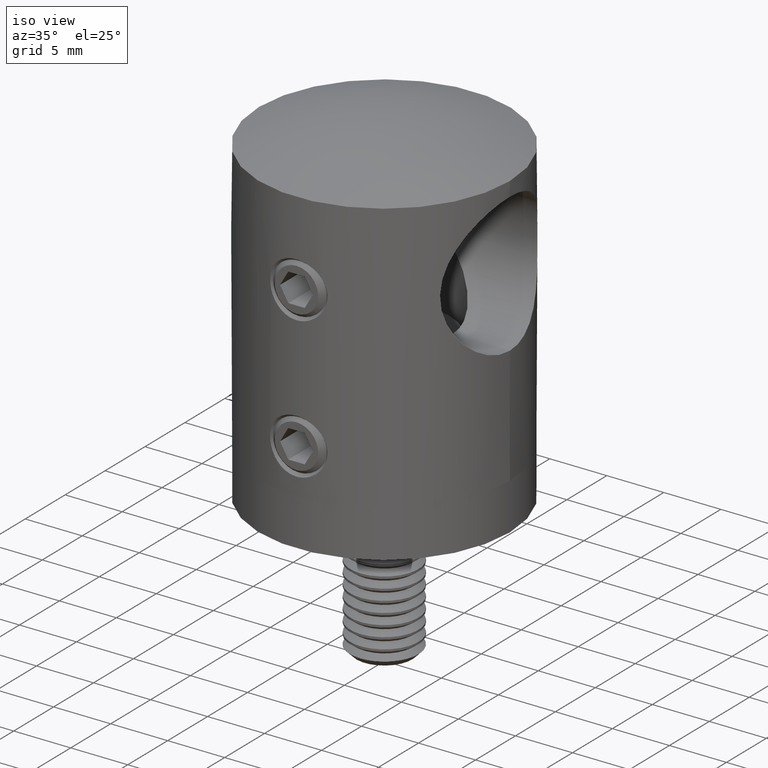
[diagram: clean part render]
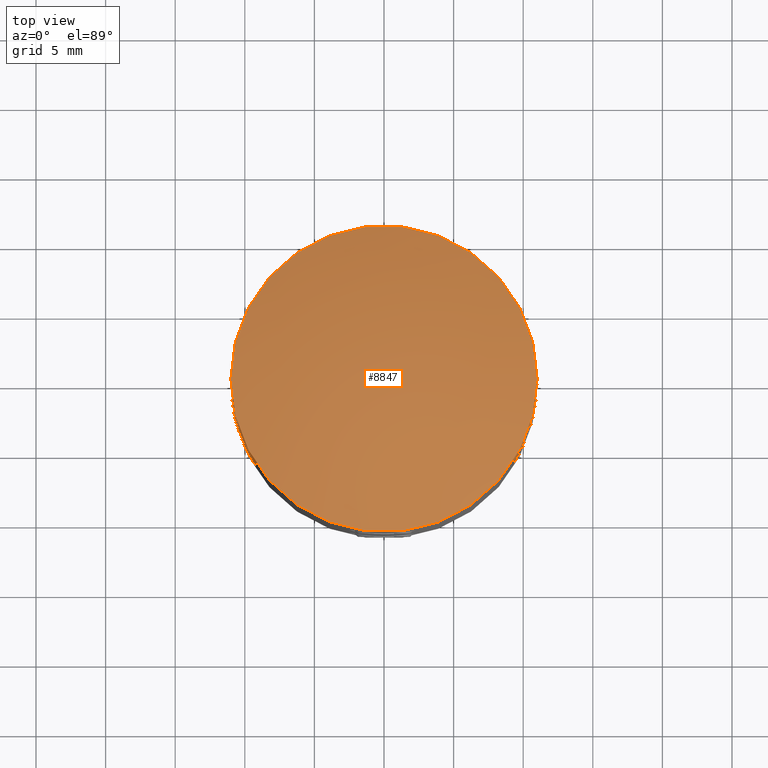
[diagram: tour spotlight — one face highlighted and labeled with its STEP entity id]
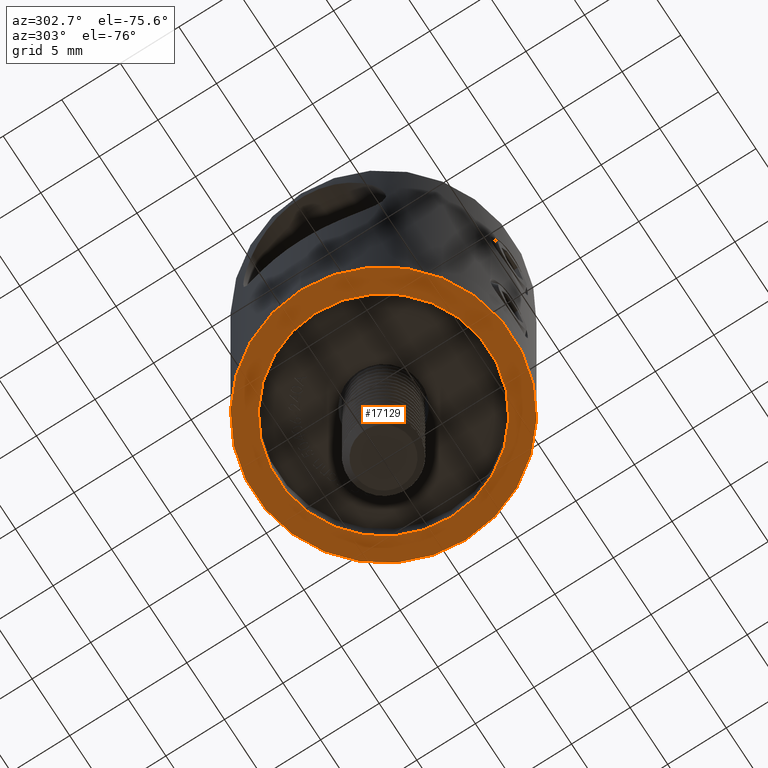
[diagram: tour spotlight — one face highlighted and labeled with its STEP entity id]
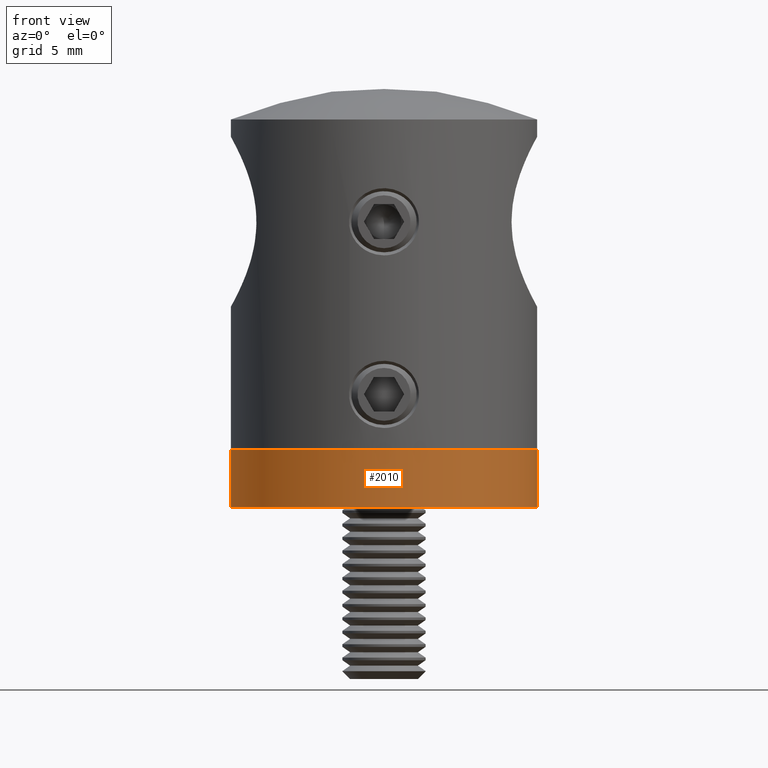
[diagram: tour spotlight — one face highlighted and labeled with its STEP entity id]
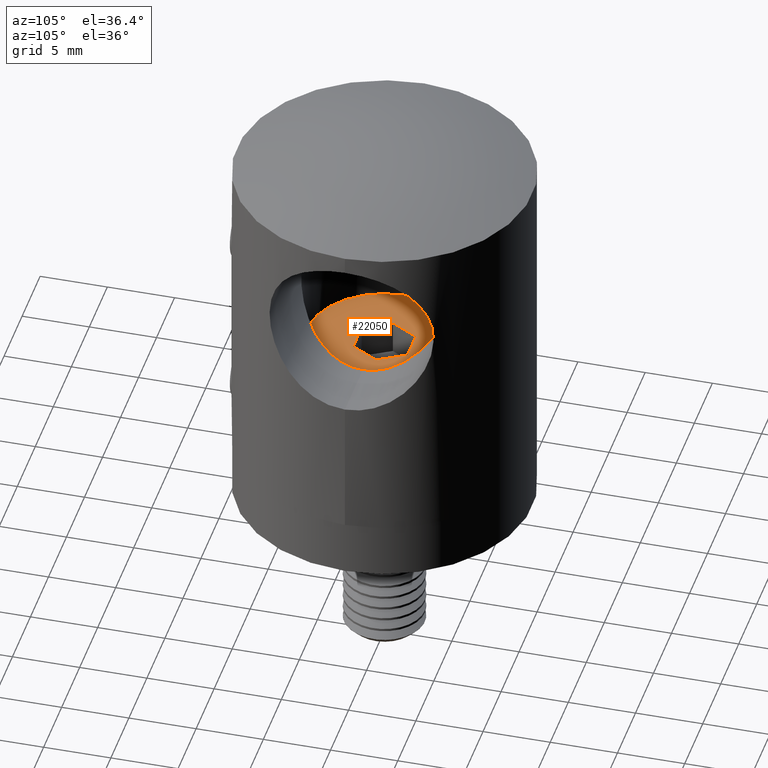
[diagram: tour spotlight — one face highlighted and labeled with its STEP entity id]
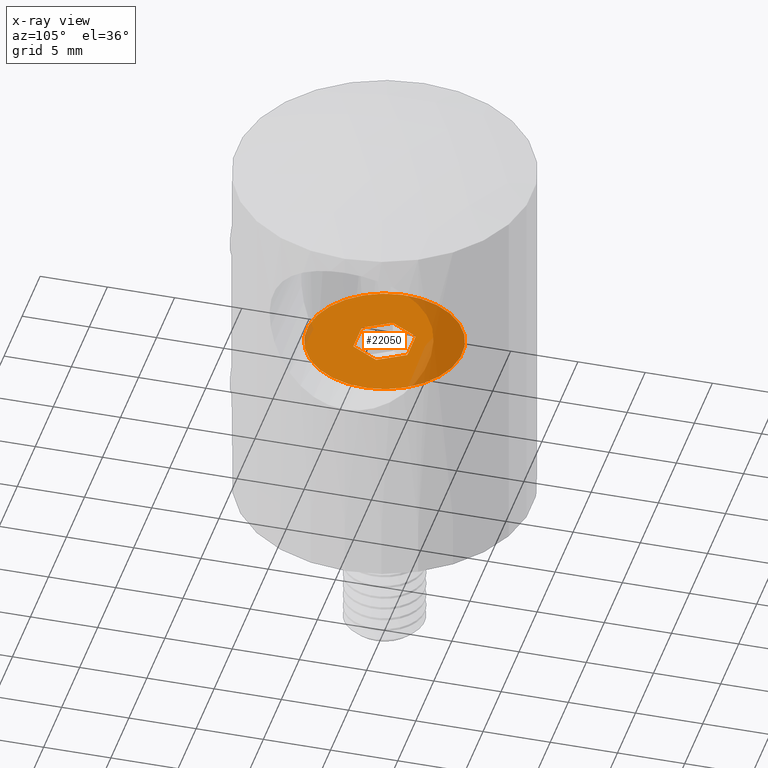
[diagram: x-ray of the same camera — body ghosted, this tour face saturated]
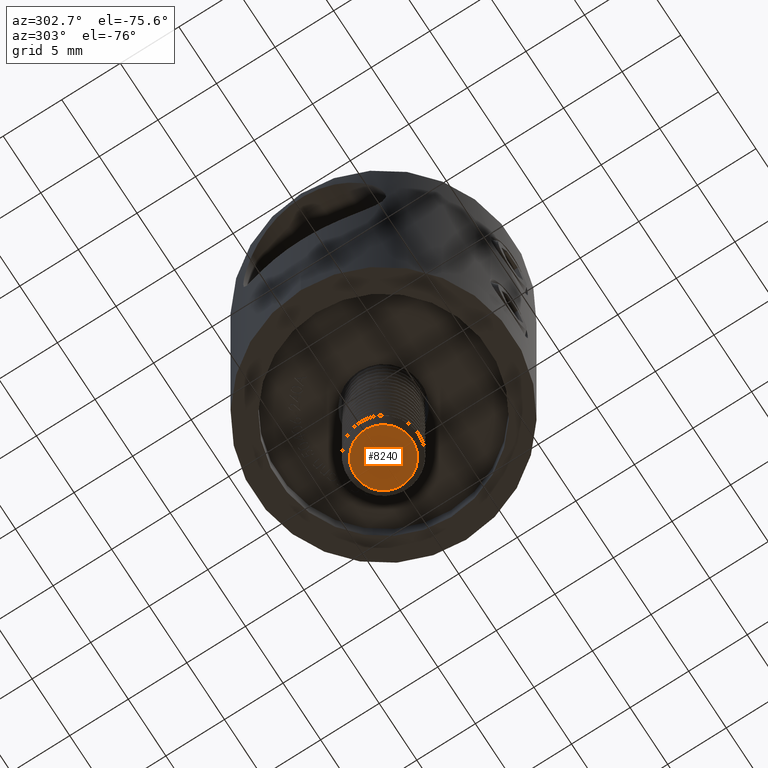
[diagram: tour spotlight — one face highlighted and labeled with its STEP entity id]
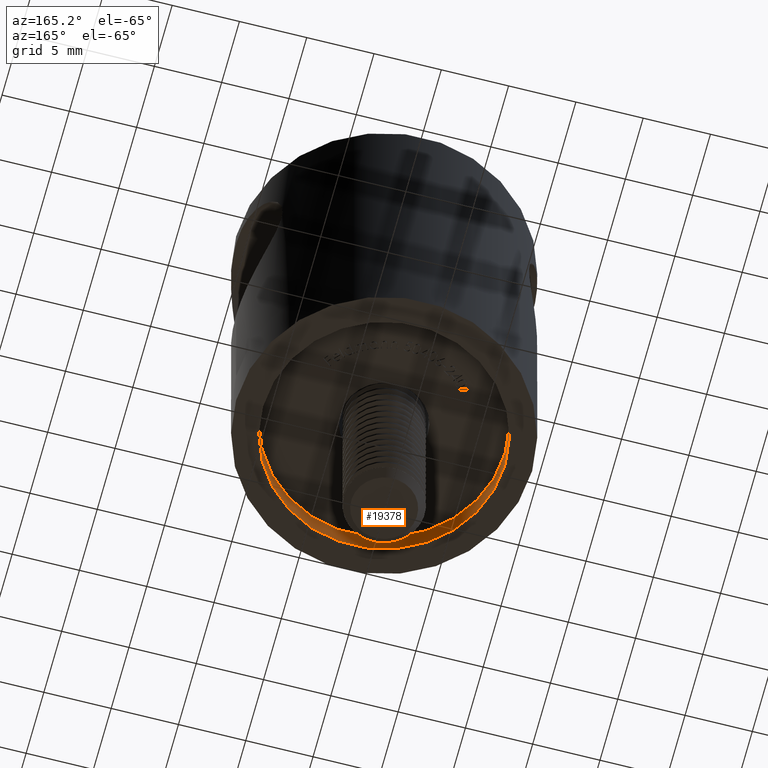
[diagram: tour spotlight — one face highlighted and labeled with its STEP entity id]
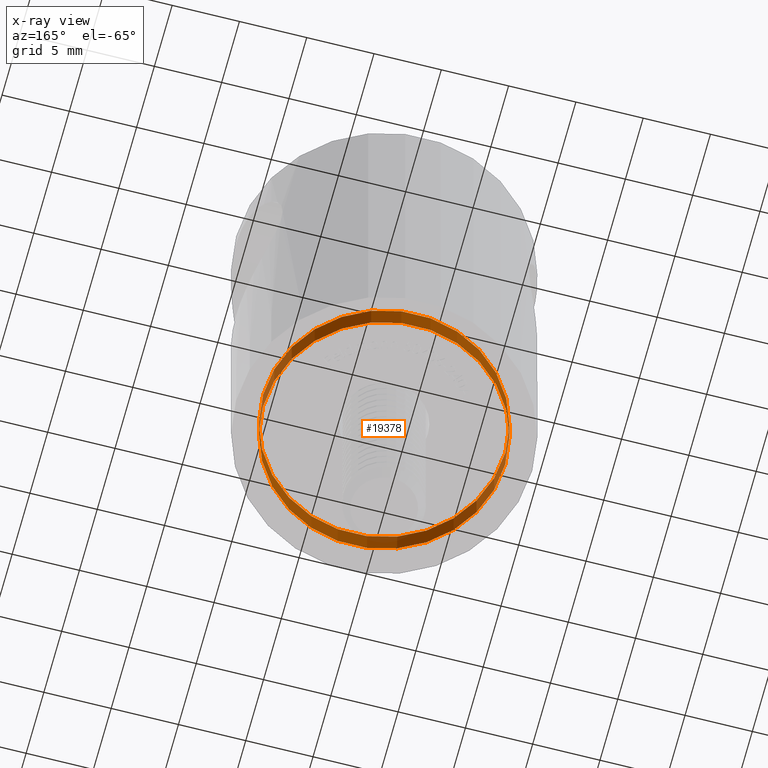
[diagram: x-ray of the same camera — body ghosted, this tour face saturated]
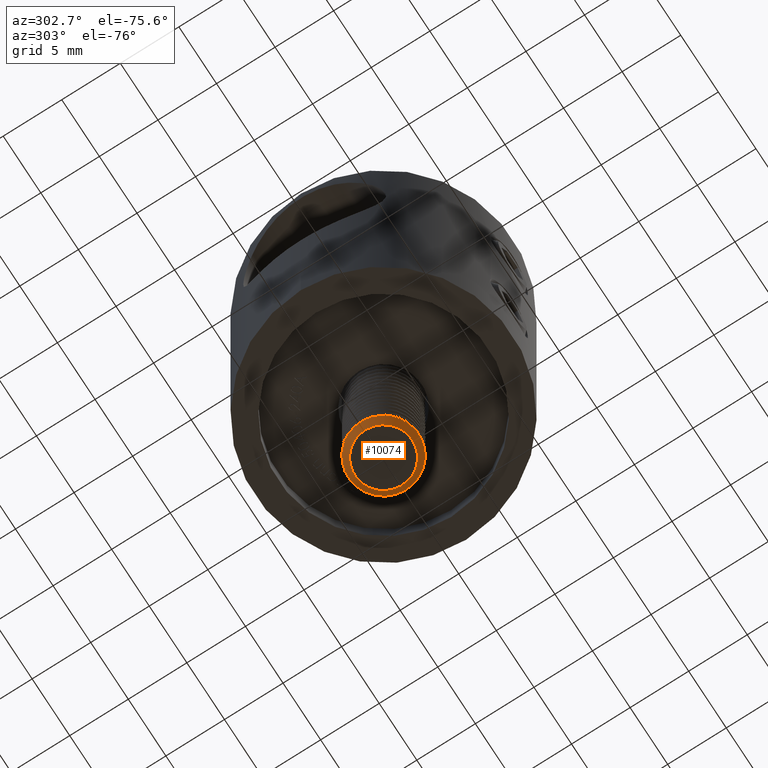
[diagram: tour spotlight — one face highlighted and labeled with its STEP entity id]
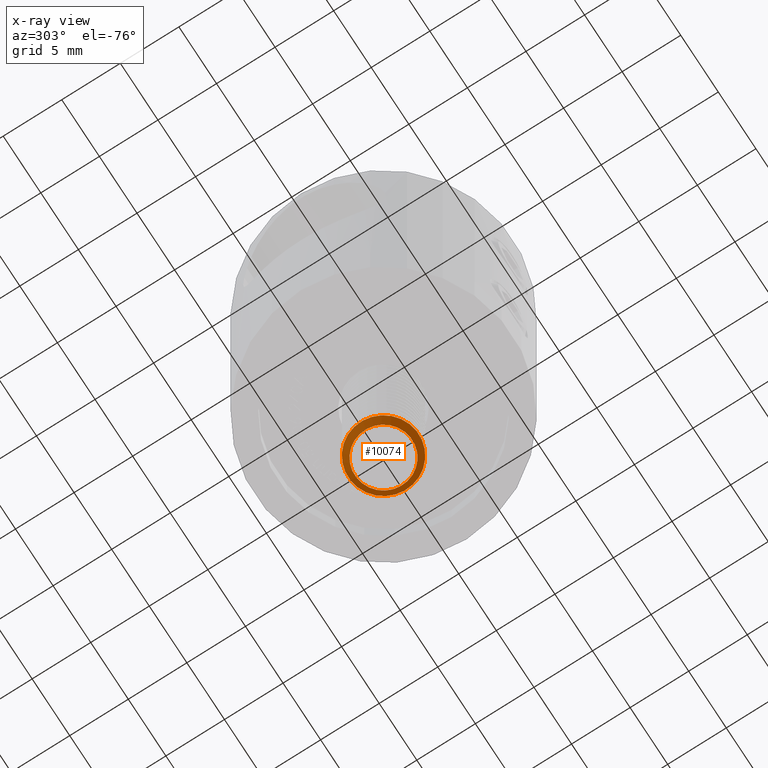
[diagram: x-ray of the same camera — body ghosted, this tour face saturated]
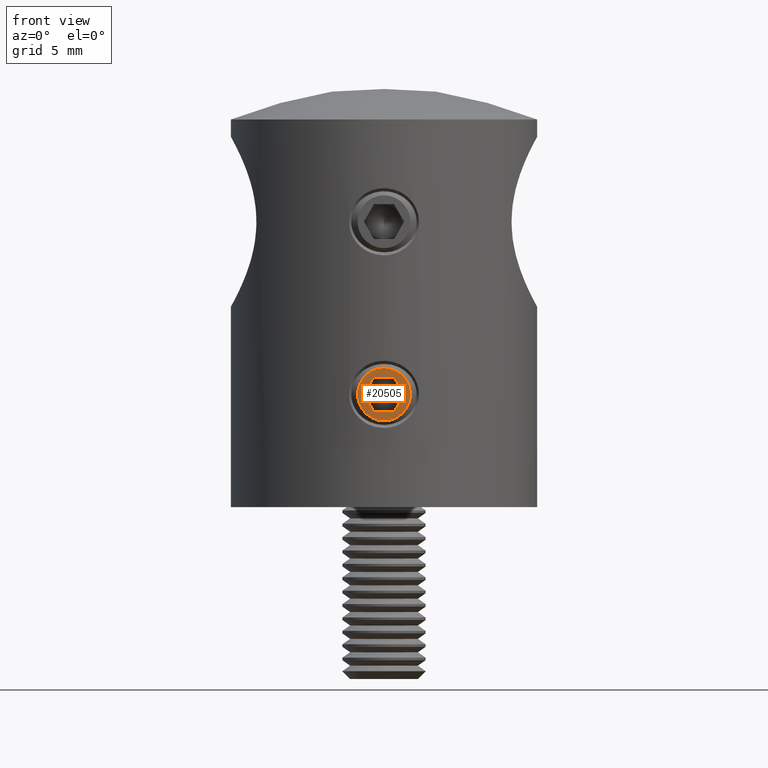
[diagram: tour spotlight — one face highlighted and labeled with its STEP entity id]
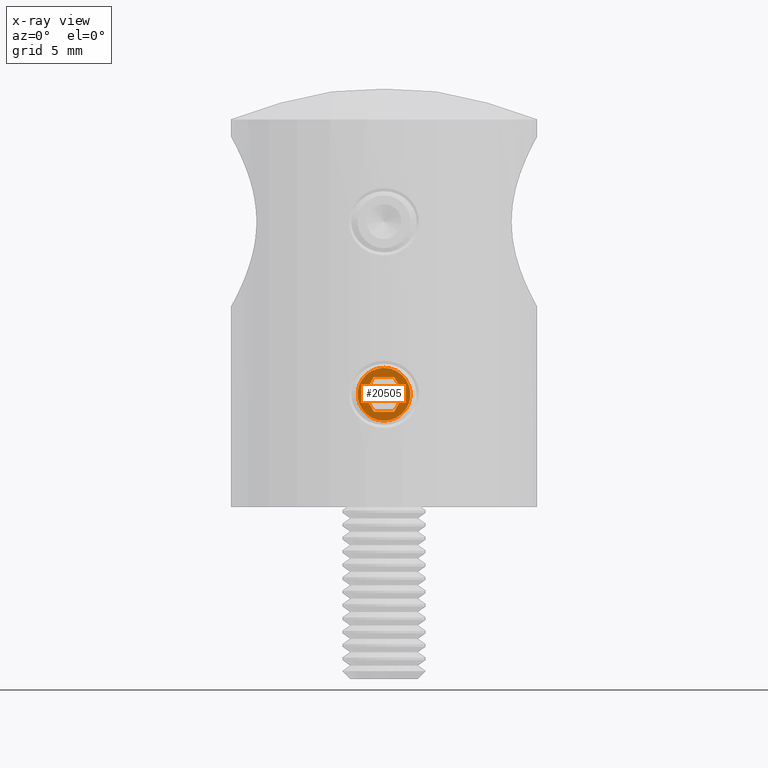
[diagram: x-ray of the same camera — body ghosted, this tour face saturated]
A machine part: a face-by-face anatomy tour. The part has 371 B-rep faces; the first image is the clean iso view, then the 8 largest visible faces are spotlighted one at a time (largest first), each with its STEP entity span.

Face 1 — top view, entity #8847. In plain terms, the highlighted spherical surface has radius 28 mm.
Definition (entity closure, byte-faithful):
#2544 = VERTEX_POINT ( 'NONE', #8158 ) ;
#5577 = SPHERICAL_SURFACE ( 'NONE', #20082, 28.00000000000000400 ) ;
#7720 = DIRECTION ( 'NONE',  ( -0.0000000000000000000, -0.0000000000000000000, 1.000000000000000000 ) ) ;
#8158 = CARTESIAN_POINT ( 'NONE',  ( 10.99999999999999600, 0.0000000000000000000, 23.74878637916747000 ) ) ;
#8847 = ADVANCED_FACE ( 'NONE', ( #13156 ), #5577, .T. ) ;
#9430 = ORIENTED_EDGE ( 'NONE', *, *, #11305, .T. ) ;
#11257 = CARTESIAN_POINT ( 'NONE',  ( 0.0000000000000000000, 0.0000000000000000000, 23.74878637916747000 ) ) ;
#11305 = EDGE_CURVE ( 'NONE', #2544, #2544, #18775, .T. ) ;
#13156 = FACE_OUTER_BOUND ( 'NONE', #19084, .T. ) ;
#15259 = CARTESIAN_POINT ( 'NONE',  ( 0.0000000000000000000, 0.0000000000000000000, -2.000000000000008900 ) ) ;
#16406 = DIRECTION ( 'NONE',  ( 1.000000000000000000, 0.0000000000000000000, 0.0000000000000000000 ) ) ;
#18506 = DIRECTION ( 'NONE',  ( 0.0000000000000000000, 1.000000000000000000, 0.0000000000000000000 ) ) ;
#18775 = CIRCLE ( 'NONE', #19663, 10.99999999999999600 ) ;
#19084 = EDGE_LOOP ( 'NONE', ( #9430 ) ) ;
#19663 = AXIS2_PLACEMENT_3D ( 'NONE', #11257, #7720, #16406 ) ;
#20082 = AXIS2_PLACEMENT_3D ( 'NONE', #15259, #21868, #18506 ) ;
#21868 = DIRECTION ( 'NONE',  ( -1.000000000000000000, 0.0000000000000000000, 0.0000000000000000000 ) ) ;

Face 2 — auxiliary view, entity #17129. In plain terms, the highlighted planar face has unit normal (0, 0, -1).
Definition (entity closure, byte-faithful):
#851 = CARTESIAN_POINT ( 'NONE',  ( 0.0000000000000000000, 0.0000000000000000000, -4.099999999999999600 ) ) ;
#952 = DIRECTION ( 'NONE',  ( -0.0000000000000000000, 0.0000000000000000000, -1.000000000000000000 ) ) ;
#1030 = CARTESIAN_POINT ( 'NONE',  ( 0.0000000000000000000, 11.00000000000000000, -4.099999999999999600 ) ) ;
#1490 = CIRCLE ( 'NONE', #16563, 9.000000000000000000 ) ;
#3423 = DIRECTION ( 'NONE',  ( -0.0000000000000000000, -0.0000000000000000000, -1.000000000000000000 ) ) ;
#4165 = DIRECTION ( 'NONE',  ( -0.0000000000000000000, -0.0000000000000000000, -1.000000000000000000 ) ) ;
#4498 = AXIS2_PLACEMENT_3D ( 'NONE', #1030, #952, #16681 ) ;
#8426 = CARTESIAN_POINT ( 'NONE',  ( 0.0000000000000000000, 0.0000000000000000000, -4.099999999999999600 ) ) ;
#9871 = PLANE ( 'NONE',  #4498 ) ;
#9889 = CARTESIAN_POINT ( 'NONE',  ( -11.00000000000000000, 0.0000000000000000000, -4.099999999999999600 ) ) ;
#10020 = EDGE_LOOP ( 'NONE', ( #16376 ) ) ;
#11490 = VERTEX_POINT ( 'NONE', #9889 ) ;
#11756 = EDGE_CURVE ( 'NONE', #11490, #11490, #12009, .T. ) ;
#12009 = CIRCLE ( 'NONE', #17668, 11.00000000000000000 ) ;
#12518 = CARTESIAN_POINT ( 'NONE',  ( -9.000000000000000000, 0.0000000000000000000, -4.099999999999999600 ) ) ;
#12727 = FACE_OUTER_BOUND ( 'NONE', #15331, .T. ) ;
#15331 = EDGE_LOOP ( 'NONE', ( #22276 ) ) ;
#15538 = DIRECTION ( 'NONE',  ( -1.000000000000000000, 0.0000000000000000000, 0.0000000000000000000 ) ) ;
#16280 = DIRECTION ( 'NONE',  ( -1.000000000000000000, 0.0000000000000000000, 0.0000000000000000000 ) ) ;
#16376 = ORIENTED_EDGE ( 'NONE', *, *, #22113, .F. ) ;
#16563 = AXIS2_PLACEMENT_3D ( 'NONE', #8426, #3423, #15538 ) ;
#16681 = DIRECTION ( 'NONE',  ( -1.000000000000000000, 0.0000000000000000000, 0.0000000000000000000 ) ) ;
#17129 = ADVANCED_FACE ( 'NONE', ( #12727, #20545 ), #9871, .T. ) ;
#17153 = VERTEX_POINT ( 'NONE', #12518 ) ;
#17668 = AXIS2_PLACEMENT_3D ( 'NONE', #851, #4165, #16280 ) ;
#20545 = FACE_BOUND ( 'NONE', #10020, .T. ) ;
#22113 = EDGE_CURVE ( 'NONE', #17153, #17153, #1490, .T. ) ;
#22276 = ORIENTED_EDGE ( 'NONE', *, *, #11756, .T. ) ;

Face 3 — front view, entity #2010. In plain terms, the highlighted cylindrical surface (bore or boss wall) has radius 11 mm, axis along (-0, -0, -1).
Definition (entity closure, byte-faithful):
#851 = CARTESIAN_POINT ( 'NONE',  ( 0.0000000000000000000, 0.0000000000000000000, -4.099999999999999600 ) ) ;
#2010 = ADVANCED_FACE ( 'NONE', ( #14355, #17044 ), #18386, .T. ) ;
#2817 = ORIENTED_EDGE ( 'NONE', *, *, #11756, .F. ) ;
#4165 = DIRECTION ( 'NONE',  ( -0.0000000000000000000, -0.0000000000000000000, -1.000000000000000000 ) ) ;
#4428 = DIRECTION ( 'NONE',  ( -1.000000000000000000, 0.0000000000000000000, 0.0000000000000000000 ) ) ;
#5754 = ORIENTED_EDGE ( 'NONE', *, *, #16175, .T. ) ;
#6514 = AXIS2_PLACEMENT_3D ( 'NONE', #16775, #18510, #13379 ) ;
#7744 = CARTESIAN_POINT ( 'NONE',  ( -11.00000000000000000, 0.0000000000000000000, 0.0000000000000000000 ) ) ;
#9889 = CARTESIAN_POINT ( 'NONE',  ( -11.00000000000000000, 0.0000000000000000000, -4.099999999999999600 ) ) ;
#10023 = CIRCLE ( 'NONE', #6514, 11.00000000000000000 ) ;
#10252 = EDGE_LOOP ( 'NONE', ( #2817 ) ) ;
#11490 = VERTEX_POINT ( 'NONE', #9889 ) ;
#11756 = EDGE_CURVE ( 'NONE', #11490, #11490, #12009, .T. ) ;
#12009 = CIRCLE ( 'NONE', #17668, 11.00000000000000000 ) ;
#12851 = VERTEX_POINT ( 'NONE', #7744 ) ;
#12926 = DIRECTION ( 'NONE',  ( -0.0000000000000000000, -0.0000000000000000000, -1.000000000000000000 ) ) ;
#13379 = DIRECTION ( 'NONE',  ( -1.000000000000000000, 0.0000000000000000000, 0.0000000000000000000 ) ) ;
#14355 = FACE_OUTER_BOUND ( 'NONE', #21196, .T. ) ;
#16175 = EDGE_CURVE ( 'NONE', #12851, #12851, #10023, .T. ) ;
#16248 = CARTESIAN_POINT ( 'NONE',  ( 0.0000000000000000000, 0.0000000000000000000, -2.100000000000000100 ) ) ;
#16280 = DIRECTION ( 'NONE',  ( -1.000000000000000000, 0.0000000000000000000, 0.0000000000000000000 ) ) ;
#16312 = AXIS2_PLACEMENT_3D ( 'NONE', #16248, #12926, #4428 ) ;
#16775 = CARTESIAN_POINT ( 'NONE',  ( 0.0000000000000000000, 0.0000000000000000000, 0.0000000000000000000 ) ) ;
#17044 = FACE_OUTER_BOUND ( 'NONE', #10252, .T. ) ;
#17668 = AXIS2_PLACEMENT_3D ( 'NONE', #851, #4165, #16280 ) ;
#18386 = CYLINDRICAL_SURFACE ( 'NONE', #16312, 11.00000000000000000 ) ;
#18510 = DIRECTION ( 'NONE',  ( -0.0000000000000000000, -0.0000000000000000000, -1.000000000000000000 ) ) ;
#21196 = EDGE_LOOP ( 'NONE', ( #5754 ) ) ;

Face 4 — auxiliary view, entity #22050. An x-ray twin of the same camera follows (body ghosted, this face saturated) — the face is partly hidden behind the body. In plain terms, the highlighted planar face has unit normal (-0, 0, 1).
Definition (entity closure, byte-faithful):
#285 = CARTESIAN_POINT ( 'NONE',  ( 0.0000000000000000000, -1.160474041071147200, 2.009999999999999800 ) ) ;
#298 = LINE ( 'NONE', #13581, #20276 ) ;
#646 = AXIS2_PLACEMENT_3D ( 'NONE', #9722, #13064, #11238 ) ;
#659 = VERTEX_POINT ( 'NONE', #14262 ) ;
#971 = CARTESIAN_POINT ( 'NONE',  ( 0.0000000000000000000, 2.320948082142296100, -3.233603273357869300E-017 ) ) ;
#1262 = VERTEX_POINT ( 'NONE', #285 ) ;
#1622 = VECTOR ( 'NONE', #17382, 1000.000000000000000 ) ;
#1918 = CARTESIAN_POINT ( 'NONE',  ( 0.0000000000000000000, 1.160474041071147600, -2.009999999999999300 ) ) ;
#2612 = VECTOR ( 'NONE', #16349, 1000.000000000000000 ) ;
#2680 = VERTEX_POINT ( 'NONE', #10445 ) ;
#3408 = LINE ( 'NONE', #12983, #21265 ) ;
#3440 = CARTESIAN_POINT ( 'NONE',  ( 0.0000000000000000000, 1.160474041071147600, 2.009999999999999800 ) ) ;
#4104 = EDGE_CURVE ( 'NONE', #12582, #1262, #8119, .T. ) ;
#4856 = CARTESIAN_POINT ( 'NONE',  ( 0.0000000000000000000, 1.160474041071147600, 2.009999999999999800 ) ) ;
#5921 = VERTEX_POINT ( 'NONE', #971 ) ;
#6114 = ORIENTED_EDGE ( 'NONE', *, *, #18344, .T. ) ;
#6123 = AXIS2_PLACEMENT_3D ( 'NONE', #17043, #6982, #19071 ) ;
#6140 = LINE ( 'NONE', #21465, #2612 ) ;
#6982 = DIRECTION ( 'NONE',  ( -1.000000000000000000, 0.0000000000000000000, -0.0000000000000000000 ) ) ;
#7124 = DIRECTION ( 'NONE',  ( -0.0000000000000000000, -0.5000000000000004400, -0.8660254037844383700 ) ) ;
#7414 = VERTEX_POINT ( 'NONE', #17809 ) ;
#7930 = EDGE_CURVE ( 'NONE', #2680, #7414, #6140, .T. ) ;
#8119 = LINE ( 'NONE', #4856, #1622 ) ;
#9383 = ORIENTED_EDGE ( 'NONE', *, *, #4104, .T. ) ;
#9722 = CARTESIAN_POINT ( 'NONE',  ( 0.0000000000000000000, 0.0000000000000000000, 0.0000000000000000000 ) ) ;
#10328 = PLANE ( 'NONE',  #6123 ) ;
#10445 = CARTESIAN_POINT ( 'NONE',  ( 0.0000000000000000000, -2.320948082142296500, 0.0000000000000000000 ) ) ;
#10459 = CARTESIAN_POINT ( 'NONE',  ( 0.0000000000000000000, -1.160474041071147200, 2.009999999999999800 ) ) ;
#11238 = DIRECTION ( 'NONE',  ( 0.0000000000000000000, 0.0000000000000000000, 1.000000000000000000 ) ) ;
#12125 = CARTESIAN_POINT ( 'NONE',  ( 0.0000000000000000000, 1.160474041071147600, -2.009999999999999300 ) ) ;
#12261 = VECTOR ( 'NONE', #7124, 1000.000000000000000 ) ;
#12318 = LINE ( 'NONE', #12125, #14763 ) ;
#12441 = EDGE_LOOP ( 'NONE', ( #15107 ) ) ;
#12532 = ORIENTED_EDGE ( 'NONE', *, *, #20615, .T. ) ;
#12582 = VERTEX_POINT ( 'NONE', #3440 ) ;
#12814 = LINE ( 'NONE', #10459, #12261 ) ;
#12983 = CARTESIAN_POINT ( 'NONE',  ( -0.0000000000000000000, -1.160474041071147200, -2.009999999999999800 ) ) ;
#13064 = DIRECTION ( 'NONE',  ( -1.000000000000000000, -0.0000000000000000000, -0.0000000000000000000 ) ) ;
#13230 = EDGE_CURVE ( 'NONE', #1262, #2680, #12814, .T. ) ;
#13276 = DIRECTION ( 'NONE',  ( 0.0000000000000000000, 1.000000000000000000, 1.868550495941741000E-016 ) ) ;
#13406 = FACE_BOUND ( 'NONE', #22339, .T. ) ;
#13501 = ORIENTED_EDGE ( 'NONE', *, *, #13230, .T. ) ;
#13581 = CARTESIAN_POINT ( 'NONE',  ( 0.0000000000000000000, 2.320948082142296100, -3.233603273357869300E-017 ) ) ;
#14262 = CARTESIAN_POINT ( 'NONE',  ( 0.0000000000000000000, 0.0000000000000000000, 5.785000000000000100 ) ) ;
#14763 = VECTOR ( 'NONE', #15463, 1000.000000000000200 ) ;
#15107 = ORIENTED_EDGE ( 'NONE', *, *, #21856, .T. ) ;
#15463 = DIRECTION ( 'NONE',  ( 0.0000000000000000000, 0.5000000000000003300, 0.8660254037844383700 ) ) ;
#16349 = DIRECTION ( 'NONE',  ( 0.0000000000000000000, 0.5000000000000004400, -0.8660254037844383700 ) ) ;
#16623 = ORIENTED_EDGE ( 'NONE', *, *, #22173, .T. ) ;
#16905 = ORIENTED_EDGE ( 'NONE', *, *, #7930, .T. ) ;
#17043 = CARTESIAN_POINT ( 'NONE',  ( 0.0000000000000000000, 0.0000000000000000000, 0.0000000000000000000 ) ) ;
#17054 = DIRECTION ( 'NONE',  ( 0.0000000000000000000, -0.5000000000000003300, 0.8660254037844383700 ) ) ;
#17382 = DIRECTION ( 'NONE',  ( 0.0000000000000000000, -1.000000000000000000, 0.0000000000000000000 ) ) ;
#17809 = CARTESIAN_POINT ( 'NONE',  ( -0.0000000000000000000, -1.160474041071147200, -2.009999999999999800 ) ) ;
#18344 = EDGE_CURVE ( 'NONE', #5921, #12582, #298, .T. ) ;
#19071 = DIRECTION ( 'NONE',  ( -0.0000000000000000000, 0.0000000000000000000, 1.000000000000000000 ) ) ;
#19353 = CIRCLE ( 'NONE', #646, 5.785000000000000100 ) ;
#20276 = VECTOR ( 'NONE', #17054, 1000.000000000000200 ) ;
#20615 = EDGE_CURVE ( 'NONE', #7414, #22299, #3408, .T. ) ;
#21265 = VECTOR ( 'NONE', #13276, 1000.000000000000000 ) ;
#21465 = CARTESIAN_POINT ( 'NONE',  ( -0.0000000000000000000, -2.320948082142296100, -2.915072610455690300E-018 ) ) ;
#21506 = FACE_OUTER_BOUND ( 'NONE', #12441, .T. ) ;
#21856 = EDGE_CURVE ( 'NONE', #659, #659, #19353, .T. ) ;
#22050 = ADVANCED_FACE ( 'NONE', ( #21506, #13406 ), #10328, .T. ) ;
#22173 = EDGE_CURVE ( 'NONE', #22299, #5921, #12318, .T. ) ;
#22299 = VERTEX_POINT ( 'NONE', #1918 ) ;
#22339 = EDGE_LOOP ( 'NONE', ( #13501, #16905, #12532, #16623, #6114, #9383 ) ) ;

Face 5 — auxiliary view, entity #8240. In plain terms, the highlighted planar face has unit normal (0, 0, -1).
Definition (entity closure, byte-faithful):
#394 = EDGE_LOOP ( 'NONE', ( #4667 ) ) ;
#3424 = DIRECTION ( 'NONE',  ( 0.0000000000000000000, 0.0000000000000000000, 1.000000000000000000 ) ) ;
#4667 = ORIENTED_EDGE ( 'NONE', *, *, #17628, .F. ) ;
#6926 = AXIS2_PLACEMENT_3D ( 'NONE', #12973, #19597, #21629 ) ;
#7139 = DIRECTION ( 'NONE',  ( -1.000000000000000000, -0.0000000000000000000, -0.0000000000000000000 ) ) ;
#8240 = ADVANCED_FACE ( 'NONE', ( #12638 ), #19749, .T. ) ;
#8711 = AXIS2_PLACEMENT_3D ( 'NONE', #15764, #7139, #3424 ) ;
#12638 = FACE_OUTER_BOUND ( 'NONE', #394, .T. ) ;
#12973 = CARTESIAN_POINT ( 'NONE',  ( 25.00000000000000000, 2.445500000000000000, 0.0000000000000000000 ) ) ;
#14489 = VERTEX_POINT ( 'NONE', #16237 ) ;
#15764 = CARTESIAN_POINT ( 'NONE',  ( 25.00000000000000000, 0.0000000000000000000, 0.0000000000000000000 ) ) ;
#16237 = CARTESIAN_POINT ( 'NONE',  ( 25.00000000000000000, 0.0000000000000000000, 2.445500000000000000 ) ) ;
#17628 = EDGE_CURVE ( 'NONE', #14489, #14489, #18145, .T. ) ;
#18145 = CIRCLE ( 'NONE', #8711, 2.445500000000000000 ) ;
#19597 = DIRECTION ( 'NONE',  ( 1.000000000000000000, 0.0000000000000000000, 0.0000000000000000000 ) ) ;
#19749 = PLANE ( 'NONE',  #6926 ) ;
#21629 = DIRECTION ( 'NONE',  ( 0.0000000000000000000, 0.0000000000000000000, -1.000000000000000000 ) ) ;

Face 6 — auxiliary view, entity #19378. An x-ray twin of the same camera follows (body ghosted, this face saturated) — the face is partly hidden behind the body. In plain terms, the highlighted cylindrical surface (bore or boss wall) has radius 9 mm, axis along (-0, -0, -1).
Definition (entity closure, byte-faithful):
#1490 = CIRCLE ( 'NONE', #16563, 9.000000000000000000 ) ;
#3145 = CARTESIAN_POINT ( 'NONE',  ( -8.999999999999998200, 0.0000000000000000000, -2.099999999999999600 ) ) ;
#3423 = DIRECTION ( 'NONE',  ( -0.0000000000000000000, -0.0000000000000000000, -1.000000000000000000 ) ) ;
#5127 = EDGE_LOOP ( 'NONE', ( #17958 ) ) ;
#5912 = CARTESIAN_POINT ( 'NONE',  ( 0.0000000000000000000, 0.0000000000000000000, -2.099999999999999600 ) ) ;
#7234 = AXIS2_PLACEMENT_3D ( 'NONE', #5912, #19730, #21547 ) ;
#7430 = CIRCLE ( 'NONE', #7234, 8.999999999999998200 ) ;
#8215 = ORIENTED_EDGE ( 'NONE', *, *, #22113, .T. ) ;
#8426 = CARTESIAN_POINT ( 'NONE',  ( 0.0000000000000000000, 0.0000000000000000000, -4.099999999999999600 ) ) ;
#9997 = DIRECTION ( 'NONE',  ( -0.0000000000000000000, -0.0000000000000000000, -1.000000000000000000 ) ) ;
#11760 = EDGE_CURVE ( 'NONE', #15557, #15557, #7430, .T. ) ;
#12518 = CARTESIAN_POINT ( 'NONE',  ( -9.000000000000000000, 0.0000000000000000000, -4.099999999999999600 ) ) ;
#12971 = CARTESIAN_POINT ( 'NONE',  ( 0.0000000000000000000, 0.0000000000000000000, -2.100000000000000100 ) ) ;
#13306 = FACE_OUTER_BOUND ( 'NONE', #20944, .T. ) ;
#14929 = CYLINDRICAL_SURFACE ( 'NONE', #15541, 8.999999999999998200 ) ;
#15538 = DIRECTION ( 'NONE',  ( -1.000000000000000000, 0.0000000000000000000, 0.0000000000000000000 ) ) ;
#15541 = AXIS2_PLACEMENT_3D ( 'NONE', #12971, #9997, #22051 ) ;
#15557 = VERTEX_POINT ( 'NONE', #3145 ) ;
#16551 = FACE_OUTER_BOUND ( 'NONE', #5127, .T. ) ;
#16563 = AXIS2_PLACEMENT_3D ( 'NONE', #8426, #3423, #15538 ) ;
#17153 = VERTEX_POINT ( 'NONE', #12518 ) ;
#17958 = ORIENTED_EDGE ( 'NONE', *, *, #11760, .F. ) ;
#19378 = ADVANCED_FACE ( 'NONE', ( #13306, #16551 ), #14929, .F. ) ;
#19730 = DIRECTION ( 'NONE',  ( -0.0000000000000000000, -0.0000000000000000000, -1.000000000000000000 ) ) ;
#20944 = EDGE_LOOP ( 'NONE', ( #8215 ) ) ;
#21547 = DIRECTION ( 'NONE',  ( -1.000000000000000000, 0.0000000000000000000, 0.0000000000000000000 ) ) ;
#22051 = DIRECTION ( 'NONE',  ( -1.000000000000000000, 0.0000000000000000000, 0.0000000000000000000 ) ) ;
#22113 = EDGE_CURVE ( 'NONE', #17153, #17153, #1490, .T. ) ;

Face 7 — auxiliary view, entity #10074. An x-ray twin of the same camera follows (body ghosted, this face saturated) — the face is partly hidden behind the body. In plain terms, the highlighted conical surface has half-angle 45 deg.
Definition (entity closure, byte-faithful):
#679 = DIRECTION ( 'NONE',  ( -1.000000000000000000, -0.0000000000000000000, -0.0000000000000000000 ) ) ;
#1914 = CIRCLE ( 'NONE', #10746, 3.000000000000000900 ) ;
#2245 = EDGE_LOOP ( 'NONE', ( #10992 ) ) ;
#3424 = DIRECTION ( 'NONE',  ( 0.0000000000000000000, 0.0000000000000000000, 1.000000000000000000 ) ) ;
#3496 = DIRECTION ( 'NONE',  ( -1.000000000000000000, -0.0000000000000000000, -0.0000000000000000000 ) ) ;
#5891 = EDGE_LOOP ( 'NONE', ( #19843 ) ) ;
#6910 = DIRECTION ( 'NONE',  ( 0.0000000000000000000, 0.0000000000000000000, 1.000000000000000000 ) ) ;
#6916 = FACE_OUTER_BOUND ( 'NONE', #2245, .T. ) ;
#7139 = DIRECTION ( 'NONE',  ( -1.000000000000000000, -0.0000000000000000000, -0.0000000000000000000 ) ) ;
#8711 = AXIS2_PLACEMENT_3D ( 'NONE', #15764, #7139, #3424 ) ;
#8781 = VERTEX_POINT ( 'NONE', #13976 ) ;
#10074 = ADVANCED_FACE ( 'NONE', ( #6916, #10986 ), #17452, .T. ) ;
#10746 = AXIS2_PLACEMENT_3D ( 'NONE', #20655, #3496, #6910 ) ;
#10986 = FACE_BOUND ( 'NONE', #5891, .T. ) ;
#10992 = ORIENTED_EDGE ( 'NONE', *, *, #17565, .F. ) ;
#12477 = CARTESIAN_POINT ( 'NONE',  ( 25.00000000000000000, 0.0000000000000000000, 0.0000000000000000000 ) ) ;
#12550 = DIRECTION ( 'NONE',  ( 0.0000000000000000000, 0.0000000000000000000, 1.000000000000000000 ) ) ;
#13166 = AXIS2_PLACEMENT_3D ( 'NONE', #12477, #679, #12550 ) ;
#13976 = CARTESIAN_POINT ( 'NONE',  ( 24.44550000000003100, 0.0000000000000000000, 3.000000000000000900 ) ) ;
#14489 = VERTEX_POINT ( 'NONE', #16237 ) ;
#15764 = CARTESIAN_POINT ( 'NONE',  ( 25.00000000000000000, 0.0000000000000000000, 0.0000000000000000000 ) ) ;
#16237 = CARTESIAN_POINT ( 'NONE',  ( 25.00000000000000000, 0.0000000000000000000, 2.445500000000000000 ) ) ;
#17452 = CONICAL_SURFACE ( 'NONE', #13166, 2.445500000000000000, 0.7853981633974744800 ) ;
#17565 = EDGE_CURVE ( 'NONE', #8781, #8781, #1914, .T. ) ;
#17628 = EDGE_CURVE ( 'NONE', #14489, #14489, #18145, .T. ) ;
#18145 = CIRCLE ( 'NONE', #8711, 2.445500000000000000 ) ;
#19843 = ORIENTED_EDGE ( 'NONE', *, *, #17628, .T. ) ;
#20655 = CARTESIAN_POINT ( 'NONE',  ( 24.44550000000003100, 0.0000000000000000000, 0.0000000000000000000 ) ) ;

Face 8 — front view, entity #20505. An x-ray twin of the same camera follows (body ghosted, this face saturated) — the face is partly hidden behind the body. In plain terms, the highlighted planar face has unit normal (0, -1, 0).
Definition (entity closure, byte-faithful):
#15 = LINE ( 'NONE', #13579, #16241 ) ;
#458 = CARTESIAN_POINT ( 'NONE',  ( 6.000000000000000000, 0.7216878364870326100, 1.250000000000000200 ) ) ;
#530 = ORIENTED_EDGE ( 'NONE', *, *, #1688, .F. ) ;
#940 = CARTESIAN_POINT ( 'NONE',  ( 6.000000000000000000, -0.7216878364870333900, -1.249999999999999600 ) ) ;
#1308 = CARTESIAN_POINT ( 'NONE',  ( 6.000000000000000000, -1.443375672974064500, -2.081695953396925700E-016 ) ) ;
#1629 = DIRECTION ( 'NONE',  ( 0.0000000000000000000, 0.5000000000000001100, 0.8660254037844386000 ) ) ;
#1688 = EDGE_CURVE ( 'NONE', #9222, #17923, #19488, .T. ) ;
#1756 = EDGE_LOOP ( 'NONE', ( #2555, #19468, #20783, #7850, #19581, #530 ) ) ;
#2512 = EDGE_CURVE ( 'NONE', #5645, #14385, #19993, .T. ) ;
#2555 = ORIENTED_EDGE ( 'NONE', *, *, #19157, .F. ) ;
#2720 = VECTOR ( 'NONE', #16810, 1000.000000000000100 ) ;
#3352 = VERTEX_POINT ( 'NONE', #12673 ) ;
#3781 = CARTESIAN_POINT ( 'NONE',  ( 6.000000000000000000, 1.443375672974064800, -2.774817153268599200E-017 ) ) ;
#4920 = VECTOR ( 'NONE', #20260, 1000.000000000000000 ) ;
#5558 = EDGE_LOOP ( 'NONE', ( #20687 ) ) ;
#5645 = VERTEX_POINT ( 'NONE', #3781 ) ;
#6220 = VECTOR ( 'NONE', #21254, 1000.000000000000100 ) ;
#7522 = CARTESIAN_POINT ( 'NONE',  ( 6.000000000000000000, 1.443375672974064800, -2.774817153268599200E-017 ) ) ;
#7568 = AXIS2_PLACEMENT_3D ( 'NONE', #10325, #19067, #17196 ) ;
#7850 = ORIENTED_EDGE ( 'NONE', *, *, #18972, .F. ) ;
#8144 = CIRCLE ( 'NONE', #7568, 1.900000000000000100 ) ;
#9222 = VERTEX_POINT ( 'NONE', #18614 ) ;
#9915 = CARTESIAN_POINT ( 'NONE',  ( 6.000000000000000000, 0.0000000000000000000, -1.900000000000000100 ) ) ;
#10013 = DIRECTION ( 'NONE',  ( 0.0000000000000000000, -1.000000000000000000, 0.0000000000000000000 ) ) ;
#10325 = CARTESIAN_POINT ( 'NONE',  ( 6.000000000000000000, 0.0000000000000000000, 0.0000000000000000000 ) ) ;
#12673 = CARTESIAN_POINT ( 'NONE',  ( 6.000000000000000000, -0.7216878364870318300, 1.250000000000000200 ) ) ;
#12996 = EDGE_CURVE ( 'NONE', #17923, #18413, #19550, .T. ) ;
#13579 = CARTESIAN_POINT ( 'NONE',  ( 6.000000000000000000, 0.7216878364870326100, -1.249999999999999600 ) ) ;
#14385 = VERTEX_POINT ( 'NONE', #458 ) ;
#14529 = VECTOR ( 'NONE', #10013, 1000.000000000000000 ) ;
#14582 = DIRECTION ( 'NONE',  ( 1.000000000000000000, 0.0000000000000000000, 0.0000000000000000000 ) ) ;
#16241 = VECTOR ( 'NONE', #1629, 1000.000000000000000 ) ;
#16383 = DIRECTION ( 'NONE',  ( 0.0000000000000000000, 0.0000000000000000000, -1.000000000000000000 ) ) ;
#16698 = EDGE_CURVE ( 'NONE', #20672, #20672, #8144, .T. ) ;
#16810 = DIRECTION ( 'NONE',  ( 0.0000000000000000000, 0.4999999999999996100, -0.8660254037844388200 ) ) ;
#16979 = CARTESIAN_POINT ( 'NONE',  ( 6.000000000000000000, 0.7216878364870326100, -1.249999999999999600 ) ) ;
#17196 = DIRECTION ( 'NONE',  ( 0.0000000000000000000, 0.0000000000000000000, -1.000000000000000000 ) ) ;
#17359 = LINE ( 'NONE', #17887, #18965 ) ;
#17489 = LINE ( 'NONE', #18333, #14529 ) ;
#17728 = AXIS2_PLACEMENT_3D ( 'NONE', #18052, #14582, #16383 ) ;
#17887 = CARTESIAN_POINT ( 'NONE',  ( 6.000000000000000000, -0.7216878364870318300, 1.250000000000000200 ) ) ;
#17923 = VERTEX_POINT ( 'NONE', #21750 ) ;
#18052 = CARTESIAN_POINT ( 'NONE',  ( 6.000000000000000000, 0.0000000000000000000, 0.0000000000000000000 ) ) ;
#18333 = CARTESIAN_POINT ( 'NONE',  ( 6.000000000000000000, 0.7216878364870326100, 1.250000000000000200 ) ) ;
#18413 = VERTEX_POINT ( 'NONE', #16979 ) ;
#18614 = CARTESIAN_POINT ( 'NONE',  ( 6.000000000000000000, -1.443375672974064500, -1.084202172485504400E-016 ) ) ;
#18965 = VECTOR ( 'NONE', #19595, 1000.000000000000100 ) ;
#18972 = EDGE_CURVE ( 'NONE', #18413, #5645, #15, .T. ) ;
#19067 = DIRECTION ( 'NONE',  ( 1.000000000000000000, 0.0000000000000000000, 0.0000000000000000000 ) ) ;
#19157 = EDGE_CURVE ( 'NONE', #3352, #9222, #17359, .T. ) ;
#19377 = FACE_OUTER_BOUND ( 'NONE', #5558, .T. ) ;
#19468 = ORIENTED_EDGE ( 'NONE', *, *, #20747, .F. ) ;
#19488 = LINE ( 'NONE', #1308, #2720 ) ;
#19550 = LINE ( 'NONE', #940, #4920 ) ;
#19581 = ORIENTED_EDGE ( 'NONE', *, *, #12996, .F. ) ;
#19595 = DIRECTION ( 'NONE',  ( 0.0000000000000000000, -0.5000000000000001100, -0.8660254037844386000 ) ) ;
#19993 = LINE ( 'NONE', #7522, #6220 ) ;
#20167 = FACE_BOUND ( 'NONE', #1756, .T. ) ;
#20260 = DIRECTION ( 'NONE',  ( 0.0000000000000000000, 1.000000000000000000, 0.0000000000000000000 ) ) ;
#20505 = ADVANCED_FACE ( 'NONE', ( #20167, #19377 ), #21504, .T. ) ;
#20672 = VERTEX_POINT ( 'NONE', #9915 ) ;
#20687 = ORIENTED_EDGE ( 'NONE', *, *, #16698, .T. ) ;
#20747 = EDGE_CURVE ( 'NONE', #14385, #3352, #17489, .T. ) ;
#20783 = ORIENTED_EDGE ( 'NONE', *, *, #2512, .F. ) ;
#21254 = DIRECTION ( 'NONE',  ( 0.0000000000000000000, -0.4999999999999998900, 0.8660254037844387100 ) ) ;
#21504 = PLANE ( 'NONE',  #17728 ) ;
#21750 = CARTESIAN_POINT ( 'NONE',  ( 6.000000000000000000, -0.7216878364870333900, -1.249999999999999600 ) ) ;